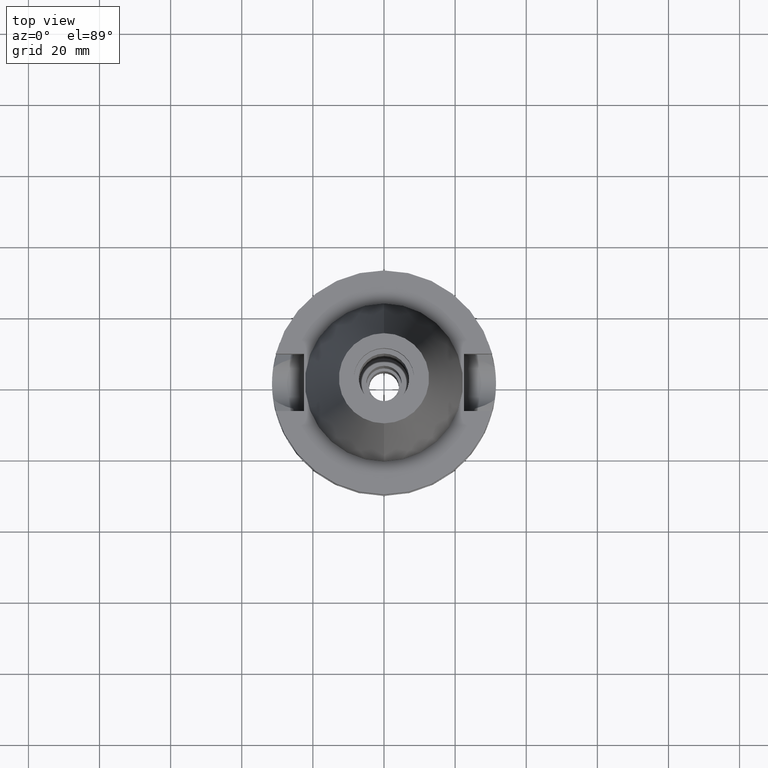
[diagram: clean part render]
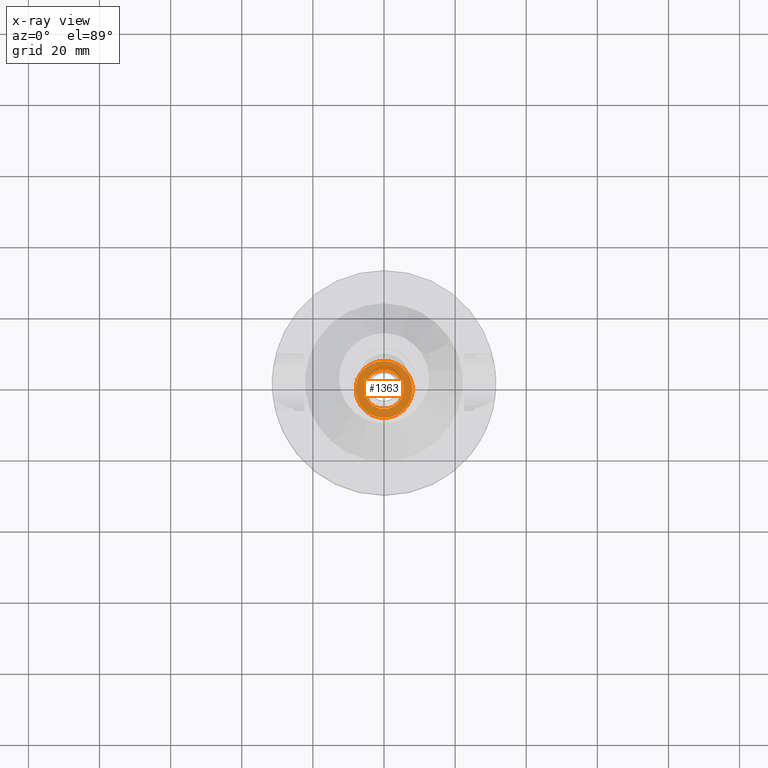
[diagram: x-ray — body ghosted, one internal face saturated and labeled with its STEP entity id]
A machine part, top view, then the same camera in x-ray: the body is ghosted and one INTERNAL B-rep face — a face not visible from any outside direction — is saturated and labeled: STEP entity #1363.
In plain terms, the highlighted planar face has unit normal (0, 0, -1).
Its self-contained STEP definition (entity closure, byte-faithful):
#106 = EDGE_CURVE ( 'NONE', #2378, #620, #2989, .T. ) ;
#108 = ORIENTED_EDGE ( 'NONE', *, *, #3491, .F. ) ;
#164 = DIRECTION ( 'NONE',  ( 0.0000000000000000000, 0.0000000000000000000, -1.000000000000000000 ) ) ;
#188 = DIRECTION ( 'NONE',  ( 0.0000000000000000000, -1.000000000000000000, 0.0000000000000000000 ) ) ;
#202 = ORIENTED_EDGE ( 'NONE', *, *, #1342, .F. ) ;
#309 = AXIS2_PLACEMENT_3D ( 'NONE', #905, #848, #1771 ) ;
#397 = FACE_BOUND ( 'NONE', #518, .T. ) ;
#518 = EDGE_LOOP ( 'NONE', ( #3202, #1250 ) ) ;
#522 = CIRCLE ( 'NONE', #997, 5.500000000000000000 ) ;
#597 = EDGE_LOOP ( 'NONE', ( #108, #202 ) ) ;
#620 = VERTEX_POINT ( 'NONE', #3473 ) ;
#648 = FACE_OUTER_BOUND ( 'NONE', #597, .T. ) ;
#668 = CARTESIAN_POINT ( 'NONE',  ( 0.0000000000000000000, 0.0000000000000000000, -7.799999999999999822 ) ) ;
#682 = AXIS2_PLACEMENT_3D ( 'NONE', #668, #164, #1012 ) ;
#699 = AXIS2_PLACEMENT_3D ( 'NONE', #2869, #3369, #2282 ) ;
#848 = DIRECTION ( 'NONE',  ( 0.0000000000000000000, 0.0000000000000000000, -1.000000000000000000 ) ) ;
#905 = CARTESIAN_POINT ( 'NONE',  ( 0.0000000000000000000, 0.0000000000000000000, -7.799999999999999822 ) ) ;
#997 = AXIS2_PLACEMENT_3D ( 'NONE', #2814, #2913, #188 ) ;
#1012 = DIRECTION ( 'NONE',  ( 0.0000000000000000000, -1.000000000000000000, 0.0000000000000000000 ) ) ;
#1250 = ORIENTED_EDGE ( 'NONE', *, *, #3030, .F. ) ;
#1283 = CARTESIAN_POINT ( 'NONE',  ( 0.0000000000000000000, 0.0000000000000000000, -7.799999999999999822 ) ) ;
#1342 = EDGE_CURVE ( 'NONE', #3505, #1695, #2392, .T. ) ;
#1363 = ADVANCED_FACE ( 'NONE', ( #648, #397 ), #2911, .F. ) ;
#1463 = CARTESIAN_POINT ( 'NONE',  ( 0.0000000000000000000, 5.500000000000000000, -7.799999999999999822 ) ) ;
#1695 = VERTEX_POINT ( 'NONE', #2475 ) ;
#1771 = DIRECTION ( 'NONE',  ( 0.0000000000000000000, 1.000000000000000000, 0.0000000000000000000 ) ) ;
#2238 = CARTESIAN_POINT ( 'NONE',  ( 0.0000000000000000000, -8.000000000000000000, -7.799999999999999822 ) ) ;
#2282 = DIRECTION ( 'NONE',  ( 0.0000000000000000000, 1.000000000000000000, 0.0000000000000000000 ) ) ;
#2378 = VERTEX_POINT ( 'NONE', #1463 ) ;
#2392 = CIRCLE ( 'NONE', #682, 8.000000000000000000 ) ;
#2475 = CARTESIAN_POINT ( 'NONE',  ( 0.0000000000000000000, 8.000000000000000000, -7.799999999999999822 ) ) ;
#2615 = AXIS2_PLACEMENT_3D ( 'NONE', #1283, #2634, #3455 ) ;
#2634 = DIRECTION ( 'NONE',  ( 0.0000000000000000000, 0.0000000000000000000, -1.000000000000000000 ) ) ;
#2814 = CARTESIAN_POINT ( 'NONE',  ( 0.0000000000000000000, 0.0000000000000000000, -7.799999999999999822 ) ) ;
#2869 = CARTESIAN_POINT ( 'NONE',  ( 0.0000000000000000000, 0.0000000000000000000, -7.799999999999999822 ) ) ;
#2911 = PLANE ( 'NONE',  #2615 ) ;
#2913 = DIRECTION ( 'NONE',  ( 0.0000000000000000000, 0.0000000000000000000, 1.000000000000000000 ) ) ;
#2989 = CIRCLE ( 'NONE', #699, 5.500000000000000000 ) ;
#3030 = EDGE_CURVE ( 'NONE', #620, #2378, #522, .T. ) ;
#3202 = ORIENTED_EDGE ( 'NONE', *, *, #106, .F. ) ;
#3369 = DIRECTION ( 'NONE',  ( 0.0000000000000000000, 0.0000000000000000000, 1.000000000000000000 ) ) ;
#3455 = DIRECTION ( 'NONE',  ( 0.0000000000000000000, -1.000000000000000000, 0.0000000000000000000 ) ) ;
#3473 = CARTESIAN_POINT ( 'NONE',  ( 0.0000000000000000000, -5.500000000000000000, -7.799999999999999822 ) ) ;
#3491 = EDGE_CURVE ( 'NONE', #1695, #3505, #3562, .T. ) ;
#3505 = VERTEX_POINT ( 'NONE', #2238 ) ;
#3562 = CIRCLE ( 'NONE', #309, 8.000000000000000000 ) ;